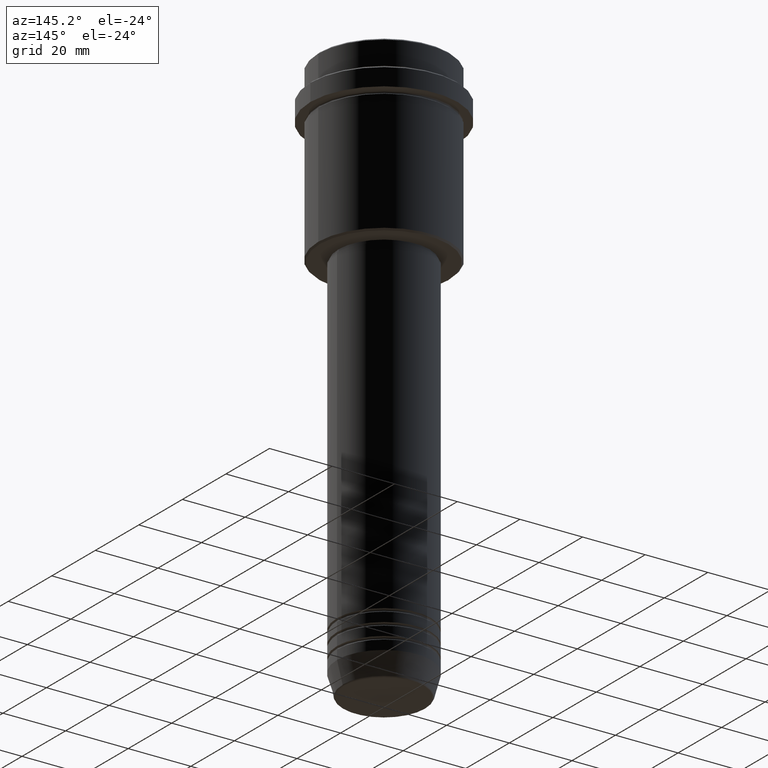
[diagram: clean part render]
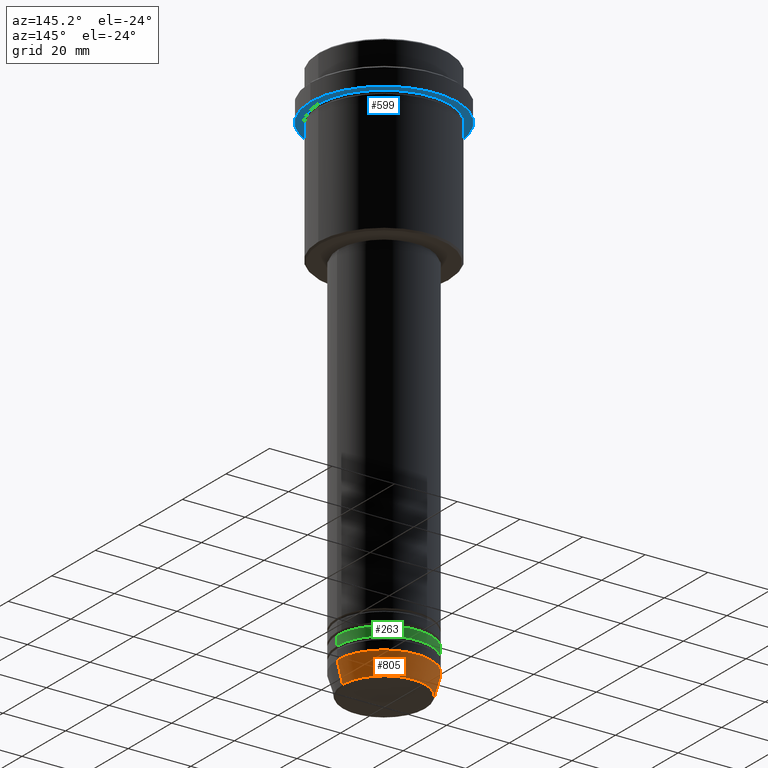
[diagram: same view with three faces highlighted in distinct colors, each labeled with its STEP entity id]
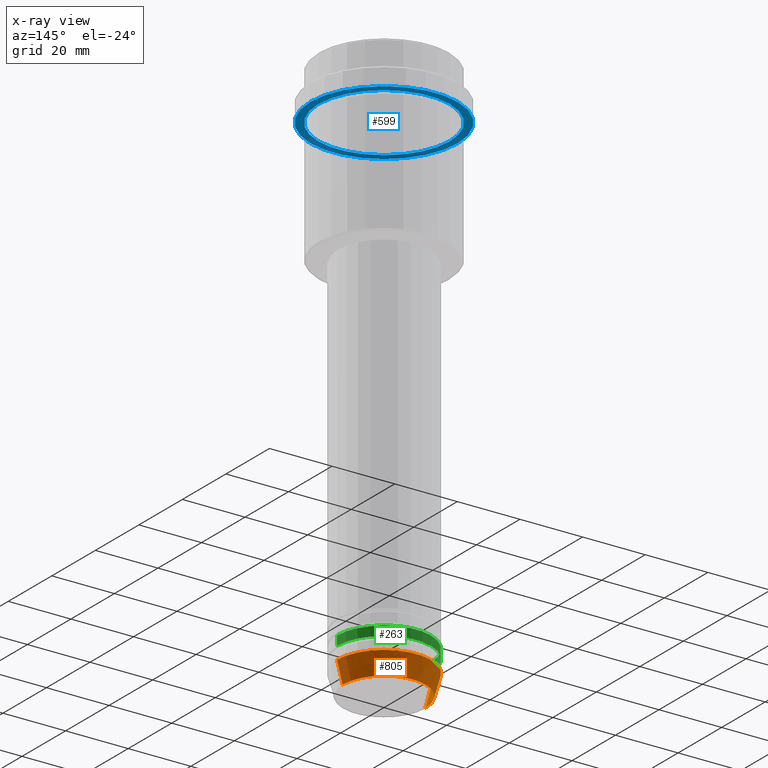
[diagram: x-ray of the same camera — body ghosted, the three highlighted faces saturated]
A machine part, auxiliary view with three faces highlighted in distinct colors.
The next image is the same camera in x-ray (body ghosted, the three faces saturated) — at least one of them is partly hidden behind the body in this view.
Their STEP definitions:

[orange] entity #805 — the highlighted conical surface has half-angle 15 deg.
#62 = AXIS2_PLACEMENT_3D ( 'NONE', #74, #411, #843 ) ;
#74 = CARTESIAN_POINT ( 'NONE',  ( 0.000000000000000000, 0.000000000000000000, -173.0000000000000000 ) ) ;
#252 = EDGE_CURVE ( 'NONE', #885, #879, #488, .T. ) ;
#294 = VERTEX_POINT ( 'NONE', #438 ) ;
#308 = CARTESIAN_POINT ( 'NONE',  ( 15.00000000000000000, 0.000000000000000000, -173.0000000000000000 ) ) ;
#313 = CARTESIAN_POINT ( 'NONE',  ( -15.00000000000000000, 1.836970198721029589E-15, -173.0000000000000000 ) ) ;
#318 = DIRECTION ( 'NONE',  ( -0.000000000000000000, -0.000000000000000000, 1.000000000000000000 ) ) ;
#319 = CARTESIAN_POINT ( 'NONE',  ( 0.000000000000000000, 0.000000000000000000, -179.6294095225512422 ) ) ;
#352 = DIRECTION ( 'NONE',  ( 0.2588190451025213501, 0.000000000000000000, 0.9659258262890680902 ) ) ;
#396 = EDGE_CURVE ( 'NONE', #885, #678, #562, .T. ) ;
#411 = DIRECTION ( 'NONE',  ( -0.000000000000000000, -0.000000000000000000, 1.000000000000000000 ) ) ;
#438 = CARTESIAN_POINT ( 'NONE',  ( -15.00000000000000000, 1.836970198721029589E-15, -173.0000000000000000 ) ) ;
#476 = ORIENTED_EDGE ( 'NONE', *, *, #396, .T. ) ;
#488 = LINE ( 'NONE', #822, #863 ) ;
#511 = LINE ( 'NONE', #313, #683 ) ;
#562 = CIRCLE ( 'NONE', #938, 13.22365507213719482 ) ;
#678 = VERTEX_POINT ( 'NONE', #1358 ) ;
#683 = VECTOR ( 'NONE', #1376, 1000.000000000000000 ) ;
#766 = ORIENTED_EDGE ( 'NONE', *, *, #837, .T. ) ;
#805 = ADVANCED_FACE ( 'NONE', ( #960 ), #1082, .T. ) ;
#822 = CARTESIAN_POINT ( 'NONE',  ( 15.00000000000000000, 0.000000000000000000, -173.0000000000000000 ) ) ;
#837 = EDGE_CURVE ( 'NONE', #678, #294, #511, .T. ) ;
#843 = DIRECTION ( 'NONE',  ( 1.000000000000000000, 0.000000000000000000, 0.000000000000000000 ) ) ;
#863 = VECTOR ( 'NONE', #352, 1000.000000000000000 ) ;
#879 = VERTEX_POINT ( 'NONE', #308 ) ;
#885 = VERTEX_POINT ( 'NONE', #1367 ) ;
#938 = AXIS2_PLACEMENT_3D ( 'NONE', #319, #1069, #1379 ) ;
#947 = DIRECTION ( 'NONE',  ( 1.000000000000000000, 0.000000000000000000, 0.000000000000000000 ) ) ;
#960 = FACE_OUTER_BOUND ( 'NONE', #1374, .T. ) ;
#1023 = ORIENTED_EDGE ( 'NONE', *, *, #252, .F. ) ;
#1069 = DIRECTION ( 'NONE',  ( -0.000000000000000000, -0.000000000000000000, 1.000000000000000000 ) ) ;
#1082 = CONICAL_SURFACE ( 'NONE', #1126, 15.00000000000000000, 0.2617993877991500740 ) ;
#1126 = AXIS2_PLACEMENT_3D ( 'NONE', #1387, #318, #947 ) ;
#1239 = EDGE_CURVE ( 'NONE', #879, #294, #1386, .T. ) ;
#1358 = CARTESIAN_POINT ( 'NONE',  ( -13.22365507213719660, 1.728200442216588780E-15, -179.6294095225512422 ) ) ;
#1360 = ORIENTED_EDGE ( 'NONE', *, *, #1239, .F. ) ;
#1367 = CARTESIAN_POINT ( 'NONE',  ( 13.22365507213719482, 0.000000000000000000, -179.6294095225512422 ) ) ;
#1374 = EDGE_LOOP ( 'NONE', ( #476, #766, #1360, #1023 ) ) ;
#1376 = DIRECTION ( 'NONE',  ( -0.2588190451025213501, 3.169619151431772337E-17, 0.9659258262890680902 ) ) ;
#1379 = DIRECTION ( 'NONE',  ( 1.000000000000000000, 0.000000000000000000, 0.000000000000000000 ) ) ;
#1386 = CIRCLE ( 'NONE', #62, 15.00000000000000000 ) ;
#1387 = CARTESIAN_POINT ( 'NONE',  ( 0.000000000000000000, 0.000000000000000000, -173.0000000000000000 ) ) ;

[blue] entity #599 — the highlighted planar face has unit normal (0, 0, -1).
#4 = CARTESIAN_POINT ( 'NONE',  ( 23.50000000000000355, 0.000000000000000000, -15.00000000000000000 ) ) ;
#67 = DIRECTION ( 'NONE',  ( -1.000000000000000000, 0.000000000000000000, 0.000000000000000000 ) ) ;
#94 = EDGE_CURVE ( 'NONE', #123, #1223, #299, .T. ) ;
#108 = CARTESIAN_POINT ( 'NONE',  ( 0.000000000000000000, 23.50000000000000355, -15.00000000000000178 ) ) ;
#123 = VERTEX_POINT ( 'NONE', #4 ) ;
#207 = EDGE_CURVE ( 'NONE', #266, #1136, #474, .T. ) ;
#212 = PLANE ( 'NONE',  #1124 ) ;
#219 = FACE_OUTER_BOUND ( 'NONE', #1306, .T. ) ;
#244 = DIRECTION ( 'NONE',  ( 1.000000000000000000, 0.000000000000000000, 0.000000000000000000 ) ) ;
#266 = VERTEX_POINT ( 'NONE', #1194 ) ;
#299 = CIRCLE ( 'NONE', #679, 23.50000000000000355 ) ;
#311 = CARTESIAN_POINT ( 'NONE',  ( -23.50000000000000711, 2.877919977996281109E-15, -15.00000000000000000 ) ) ;
#353 = DIRECTION ( 'NONE',  ( 0.000000000000000000, 0.000000000000000000, -1.000000000000000000 ) ) ;
#361 = AXIS2_PLACEMENT_3D ( 'NONE', #851, #509, #383 ) ;
#382 = CARTESIAN_POINT ( 'NONE',  ( -20.99999999999999289, 0.000000000000000000, -15.00000000000000178 ) ) ;
#383 = DIRECTION ( 'NONE',  ( -1.000000000000000000, 0.000000000000000000, 0.000000000000000000 ) ) ;
#474 = CIRCLE ( 'NONE', #361, 20.99999999999999289 ) ;
#495 = CARTESIAN_POINT ( 'NONE',  ( 0.000000000000000000, 0.000000000000000000, -15.00000000000000178 ) ) ;
#501 = CIRCLE ( 'NONE', #1365, 20.99999999999999289 ) ;
#509 = DIRECTION ( 'NONE',  ( -0.000000000000000000, -0.000000000000000000, 1.000000000000000000 ) ) ;
#582 = DIRECTION ( 'NONE',  ( -0.000000000000000000, -0.000000000000000000, 1.000000000000000000 ) ) ;
#599 = ADVANCED_FACE ( 'NONE', ( #1308, #219 ), #212, .T. ) ;
#628 = ORIENTED_EDGE ( 'NONE', *, *, #207, .T. ) ;
#670 = ORIENTED_EDGE ( 'NONE', *, *, #1378, .F. ) ;
#679 = AXIS2_PLACEMENT_3D ( 'NONE', #1232, #582, #244 ) ;
#686 = ORIENTED_EDGE ( 'NONE', *, *, #1332, .T. ) ;
#791 = DIRECTION ( 'NONE',  ( -1.000000000000000000, 0.000000000000000000, -0.000000000000000000 ) ) ;
#851 = CARTESIAN_POINT ( 'NONE',  ( 0.000000000000000000, 0.000000000000000000, -15.00000000000000178 ) ) ;
#940 = DIRECTION ( 'NONE',  ( -0.000000000000000000, -0.000000000000000000, 1.000000000000000000 ) ) ;
#1092 = DIRECTION ( 'NONE',  ( -0.000000000000000000, -0.000000000000000000, 1.000000000000000000 ) ) ;
#1124 = AXIS2_PLACEMENT_3D ( 'NONE', #108, #353, #791 ) ;
#1136 = VERTEX_POINT ( 'NONE', #382 ) ;
#1158 = EDGE_LOOP ( 'NONE', ( #686, #628 ) ) ;
#1194 = CARTESIAN_POINT ( 'NONE',  ( 20.99999999999999289, 2.571758278209440872E-15, -15.00000000000000178 ) ) ;
#1198 = AXIS2_PLACEMENT_3D ( 'NONE', #1210, #1092, #1401 ) ;
#1210 = CARTESIAN_POINT ( 'NONE',  ( 0.000000000000000000, 0.000000000000000000, -15.00000000000000000 ) ) ;
#1223 = VERTEX_POINT ( 'NONE', #311 ) ;
#1232 = CARTESIAN_POINT ( 'NONE',  ( 0.000000000000000000, 0.000000000000000000, -15.00000000000000000 ) ) ;
#1266 = CIRCLE ( 'NONE', #1198, 23.50000000000000355 ) ;
#1306 = EDGE_LOOP ( 'NONE', ( #1315, #670 ) ) ;
#1308 = FACE_BOUND ( 'NONE', #1158, .T. ) ;
#1315 = ORIENTED_EDGE ( 'NONE', *, *, #94, .F. ) ;
#1332 = EDGE_CURVE ( 'NONE', #1136, #266, #501, .T. ) ;
#1365 = AXIS2_PLACEMENT_3D ( 'NONE', #495, #940, #67 ) ;
#1378 = EDGE_CURVE ( 'NONE', #1223, #123, #1266, .T. ) ;
#1401 = DIRECTION ( 'NONE',  ( 1.000000000000000000, 0.000000000000000000, 0.000000000000000000 ) ) ;

[green] entity #263 — the highlighted cylindrical surface (partial cylindrical patch) has radius 15 mm, axis along (-0, -0, 1).
#11 = AXIS2_PLACEMENT_3D ( 'NONE', #1373, #1197, #641 ) ;
#24 = CARTESIAN_POINT ( 'NONE',  ( 15.00000000000000000, 0.000000000000000000, 0.000000000000000000 ) ) ;
#70 = VERTEX_POINT ( 'NONE', #1037 ) ;
#106 = VERTEX_POINT ( 'NONE', #924 ) ;
#127 = VECTOR ( 'NONE', #1328, 1000.000000000000000 ) ;
#196 = DIRECTION ( 'NONE',  ( 1.000000000000000000, 0.000000000000000000, 0.000000000000000000 ) ) ;
#200 = AXIS2_PLACEMENT_3D ( 'NONE', #839, #620, #196 ) ;
#217 = CARTESIAN_POINT ( 'NONE',  ( 15.00000000000000000, 0.000000000000000000, -168.9999999999998863 ) ) ;
#238 = ORIENTED_EDGE ( 'NONE', *, *, #689, .F. ) ;
#263 = ADVANCED_FACE ( 'NONE', ( #413 ), #1164, .T. ) ;
#292 = VERTEX_POINT ( 'NONE', #217 ) ;
#378 = VERTEX_POINT ( 'NONE', #853 ) ;
#390 = VECTOR ( 'NONE', #466, 1000.000000000000000 ) ;
#413 = FACE_OUTER_BOUND ( 'NONE', #597, .T. ) ;
#415 = EDGE_CURVE ( 'NONE', #292, #378, #537, .T. ) ;
#451 = AXIS2_PLACEMENT_3D ( 'NONE', #1047, #1129, #498 ) ;
#466 = DIRECTION ( 'NONE',  ( -0.000000000000000000, -0.000000000000000000, 1.000000000000000000 ) ) ;
#492 = EDGE_CURVE ( 'NONE', #378, #106, #1208, .T. ) ;
#498 = DIRECTION ( 'NONE',  ( 1.000000000000000000, 0.000000000000000000, 0.000000000000000000 ) ) ;
#537 = CIRCLE ( 'NONE', #11, 15.00000000000000000 ) ;
#597 = EDGE_LOOP ( 'NONE', ( #1141, #1149, #238, #858 ) ) ;
#620 = DIRECTION ( 'NONE',  ( -0.000000000000000000, -0.000000000000000000, 1.000000000000000000 ) ) ;
#641 = DIRECTION ( 'NONE',  ( 1.000000000000000000, 0.000000000000000000, 0.000000000000000000 ) ) ;
#657 = CIRCLE ( 'NONE', #451, 15.00000000000000000 ) ;
#689 = EDGE_CURVE ( 'NONE', #70, #106, #657, .T. ) ;
#762 = CARTESIAN_POINT ( 'NONE',  ( -15.00000000000000000, 1.836970198721029589E-15, 0.000000000000000000 ) ) ;
#839 = CARTESIAN_POINT ( 'NONE',  ( 0.000000000000000000, 0.000000000000000000, 0.000000000000000000 ) ) ;
#853 = CARTESIAN_POINT ( 'NONE',  ( -15.00000000000000000, 1.836970198721029589E-15, -168.9999999999998863 ) ) ;
#858 = ORIENTED_EDGE ( 'NONE', *, *, #1138, .F. ) ;
#924 = CARTESIAN_POINT ( 'NONE',  ( -15.00000000000000000, 1.836970198721029589E-15, -165.9999999999998579 ) ) ;
#1037 = CARTESIAN_POINT ( 'NONE',  ( 15.00000000000000000, 0.000000000000000000, -165.9999999999998579 ) ) ;
#1047 = CARTESIAN_POINT ( 'NONE',  ( 0.000000000000000000, 0.000000000000000000, -165.9999999999998579 ) ) ;
#1129 = DIRECTION ( 'NONE',  ( -0.000000000000000000, -0.000000000000000000, 1.000000000000000000 ) ) ;
#1138 = EDGE_CURVE ( 'NONE', #292, #70, #1353, .T. ) ;
#1141 = ORIENTED_EDGE ( 'NONE', *, *, #415, .T. ) ;
#1149 = ORIENTED_EDGE ( 'NONE', *, *, #492, .T. ) ;
#1164 = CYLINDRICAL_SURFACE ( 'NONE', #200, 15.00000000000000000 ) ;
#1197 = DIRECTION ( 'NONE',  ( -0.000000000000000000, -0.000000000000000000, 1.000000000000000000 ) ) ;
#1208 = LINE ( 'NONE', #762, #127 ) ;
#1328 = DIRECTION ( 'NONE',  ( -0.000000000000000000, -0.000000000000000000, 1.000000000000000000 ) ) ;
#1353 = LINE ( 'NONE', #24, #390 ) ;
#1373 = CARTESIAN_POINT ( 'NONE',  ( 0.000000000000000000, 0.000000000000000000, -168.9999999999998863 ) ) ;